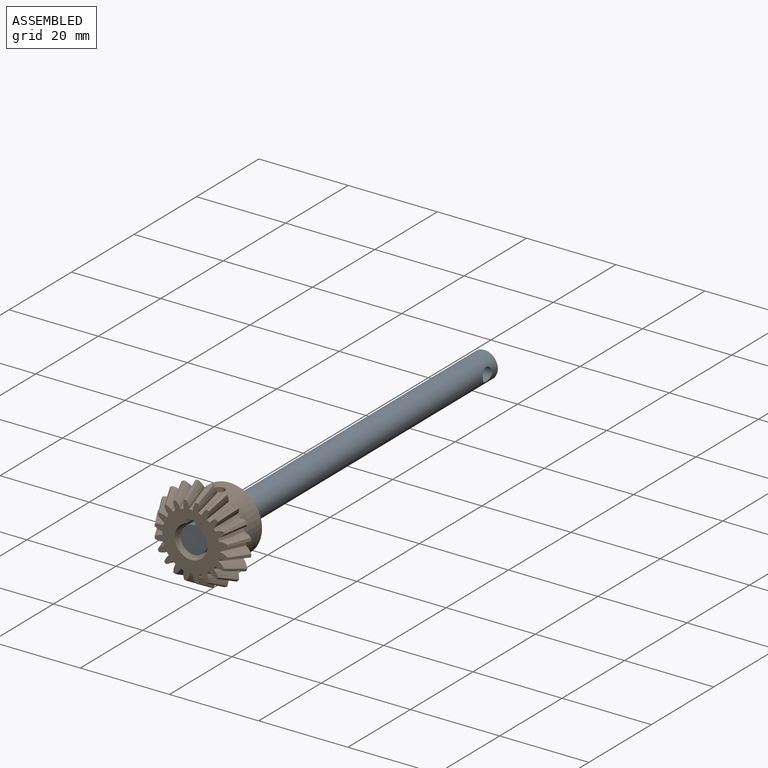
[diagram: assembled view]
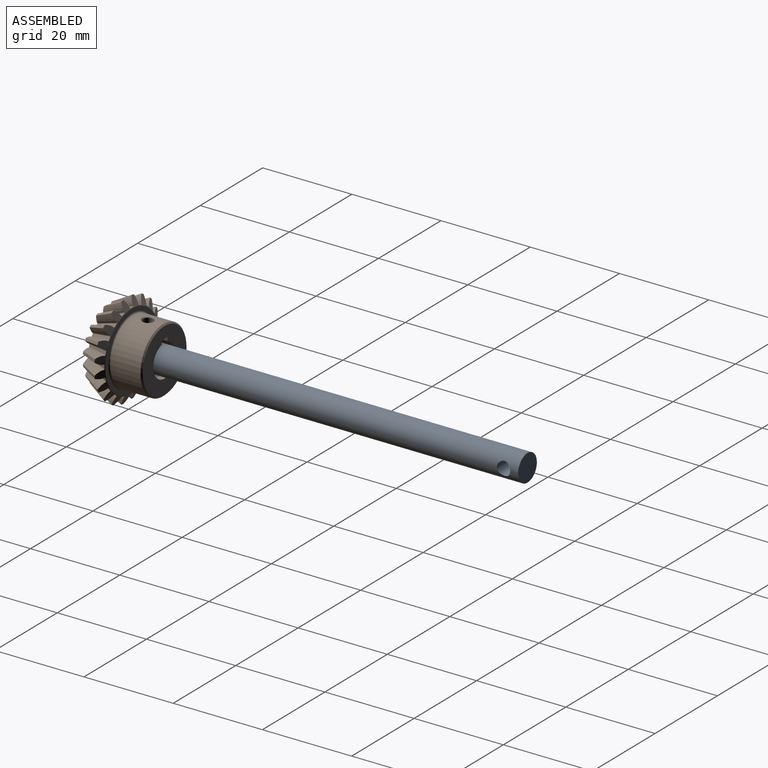
[diagram: assembled view, second angle]
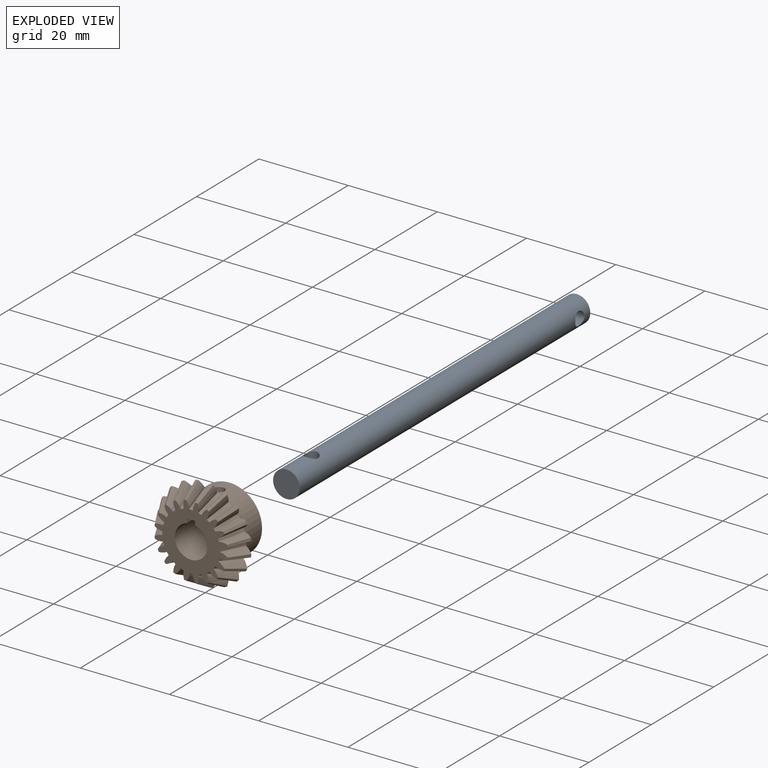
[diagram: exploded view]
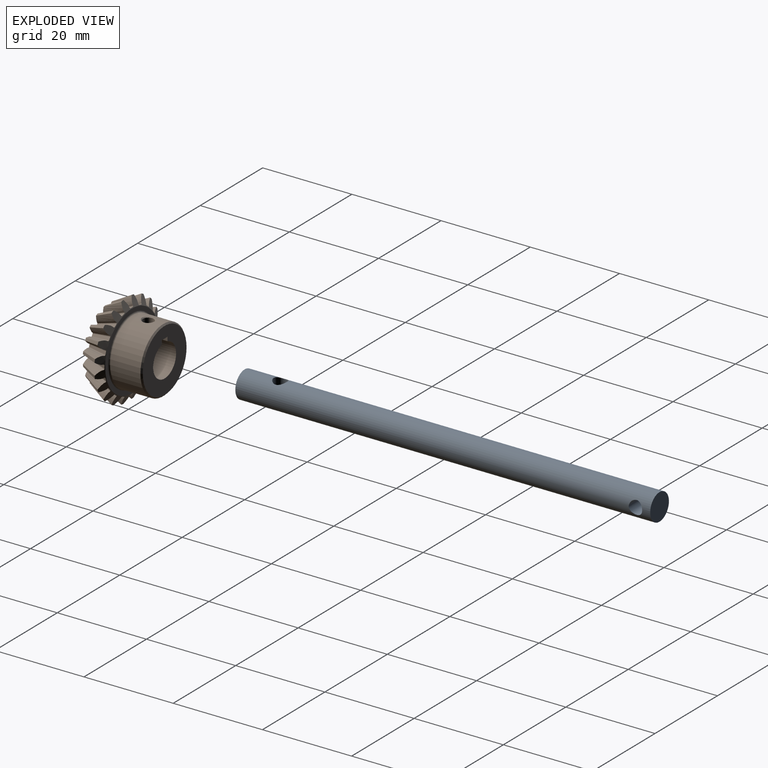
[diagram: exploded view, second angle]
ASSEMBLY  parts=2 mates=2
PART A: 5 faces, bbox 6x6x93 mm
  f0: cylinder r=3mm len=93mm, axis (0,0,-1), area 1723.7mm2, adj f1,f2,f3,f4
  f1: plane 6x6mm, normal (0,0,1), area 28.3mm2, adj f0
  f2: plane 6x6mm, normal (0,0,-1), area 28.3mm2, adj f0
  f3: cylinder r=1.5mm len=6mm, axis (0,1,0), area 52.8mm2, adj f0
  f4: cylinder r=1.5mm len=6mm, axis (-1,0,0), area 52.8mm2, adj f0
PART B: 176 faces, bbox 21.3x13.7x21.3 mm
  f0: cone r=10.63mm half-angle=29.1deg, axis (0,1,0), area 3.1mm2, adj f19,f23,f26,f169
  f1: cone r=10.63mm half-angle=29.1deg, axis (0,1,0), area 3.1mm2, adj f19,f23,f162,f170
  f2: cone r=10.63mm half-angle=29.1deg, axis (0,1,0), area 3.1mm2, adj f19,f23,f155,f163
  f3: cone r=10.63mm half-angle=29.1deg, axis (0,1,0), area 3.1mm2, adj f19,f23,f148,f156
  f4: cone r=10.63mm half-angle=29.1deg, axis (0,1,0), area 3.1mm2, adj f19,f23,f141,f149
  f5: cone r=10.63mm half-angle=29.1deg, axis (0,1,0), area 3.1mm2, adj f19,f23,f134,f142
  f6: cone r=10.63mm half-angle=29.1deg, axis (0,1,0), area 3.1mm2, adj f19,f23,f127,f135
  f7: cone r=10.63mm half-angle=29.1deg, axis (0,1,0), area 3.1mm2, adj f19,f23,f120,f128
  f8: cone r=10.63mm half-angle=29.1deg, axis (0,1,0), area 3.1mm2, adj f19,f23,f113,f121
  f9: cone r=10.63mm half-angle=29.1deg, axis (0,1,0), area 3.1mm2, adj f19,f23,f106,f114
  f10: cone r=10.63mm half-angle=29.1deg, axis (0,1,0), area 3.1mm2, adj f19,f23,f99,f107
  f11: cone r=10.63mm half-angle=29.1deg, axis (0,1,0), area 3.1mm2, adj f19,f23,f92,f100
  f12: cone r=10.63mm half-angle=29.1deg, axis (0,1,0), area 3.1mm2, adj f19,f23,f85,f93
  f13: cone r=10.63mm half-angle=29.1deg, axis (0,1,0), area 3.1mm2, adj f19,f23,f78,f86
  f14: cone r=10.63mm half-angle=29.1deg, axis (0,1,0), area 3.1mm2, adj f19,f23,f71,f79
  f15: cone r=10.63mm half-angle=29.1deg, axis (0,1,0), area 3.1mm2, adj f19,f23,f64,f72
  f16: cone r=10.63mm half-angle=29.1deg, axis (0,1,0), area 3.1mm2, adj f19,f23,f57,f65
  f17: cone r=10.63mm half-angle=29.1deg, axis (0,1,0), area 3.1mm2, adj f19,f23,f50,f58
  f18: cone r=10.63mm half-angle=29.1deg, axis (0,1,0), area 3.1mm2, adj f19,f23,f48,f51
  f19: plane 16.41x16.41mm, normal (0,-1,0), area 126.5mm2, adj f0,f1,f2,f3,f4,f5,f6,f7
  f20: cylinder r=3.66mm len=12.6mm, axis (0,-1,0), area 265.6mm2, adj f19,f32,f35,f37,f38,f40,f41
  f21: cylinder r=7.32mm len=14.63mm, axis (0,-1,0), area 301.7mm2, adj f33,f34,f36
  f22: plane 17.17x17.17mm, normal (0,1,0), area 48.7mm2, adj f23,f34
  f23: cone r=8.58mm half-angle=63.4deg, axis (0,-1,0), area 67mm2, adj f0,f1,f2,f3,f4,f5,f6,f7
  f24: cone r=10.63mm half-angle=29.1deg, axis (0,1,0), area 3.1mm2, adj f19,f23,f25,f49
  f25: bspline ~6.05x4mm, area 8mm2, adj f19,f23,f24,f27
  f26: bspline ~6.05x4mm, area 8mm2, adj f0,f19,f23,f28
  f27: plane 5.1x2.51mm, normal (1,0,0.06), area 1.2mm2, adj f19,f23,f25,f29
  f28: plane 5.1x2.51mm, normal (-1,0,0.06), area 1.2mm2, adj f19,f23,f26,f30
  f29: bspline ~5.29x2.49mm, area 1.8mm2, adj f19,f23,f27,f31
  f30: bspline ~5.29x2.49mm, area 1.8mm2, adj f19,f23,f28,f31
  f31: plane 5.23x2.28mm, normal (0,-0.4,0.92), area 3.2mm2, adj f19,f23,f29,f30
  f32: plane 14.01x14.01mm, normal (0,1,0), area 110.5mm2, adj f20,f33,f37,f38,f39
  f33: cone r=7.32mm half-angle=45deg, axis (0,-1,0), area 19.9mm2, adj f21,f32
  f34: torus R=7.63mm, axis (0,-1,0), area 22.9mm2, adj f21,f22
  f35: cylinder r=1.22mm len=3.58mm, axis (0,0,-1), area 23.6mm2, adj f20,f36,f37,f38,f39,f40,f41,f42
  f36: cone r=1.41mm half-angle=45deg, axis (0,0,1), area 1.5mm2, adj f21,f35
  f37: plane 2.85x0.91mm, normal (1,0,0), area 2.6mm2, adj f20,f32,f35,f39
  f38: plane 2.85x0.91mm, normal (-1,0,0), area 2.6mm2, adj f20,f32,f35,f39
  f39: plane 2.85x1.83mm, normal (0,0,-1), area 4.7mm2, adj f32,f35,f37,f38
  f40: plane 8.14x0.91mm, normal (-1,0,0), area 7.4mm2, adj f19,f20,f35,f42
  f41: plane 8.14x0.91mm, normal (1,0,0), area 7.4mm2, adj f19,f20,f35,f42
  f42: plane 8.14x1.83mm, normal (0,0,-1), area 14.4mm2, adj f19,f35,f40,f41
  f43: plane 5.1x2.33mm, normal (0.93,0,0.37), area 1.2mm2, adj f19,f23,f45,f48
  f44: plane 5.1x2.43mm, normal (-0.97,0,-0.25), area 1.2mm2, adj f19,f23,f46,f49
  f45: bspline ~5.29x2.28mm, area 1.8mm2, adj f19,f23,f43,f47
  f46: bspline ~5.29x2.46mm, area 1.8mm2, adj f19,f23,f44,f47
  f47: plane 5.23x2.35mm, normal (-0.28,-0.4,0.87), area 3.2mm2, adj f19,f23,f45,f46
  f48: bspline ~6.05x3.52mm, area 8mm2, adj f18,f19,f23,f43
  f49: bspline ~5.52x3.8mm, area 8mm2, adj f19,f23,f24,f44
  f50: bspline ~5.52x2.9mm, area 8mm2, adj f17,f19,f23,f52
  f51: bspline ~6.05x3.79mm, area 8mm2, adj f18,f19,f23,f53
  f52: plane 5.1x1.93mm, normal (0.77,0,0.64), area 1.2mm2, adj f19,f23,f50,f54
  f53: plane 5.1x2.12mm, normal (-0.85,0,-0.53), area 1.2mm2, adj f19,f23,f51,f55
  f54: bspline ~5.29x1.86mm, area 1.8mm2, adj f19,f23,f52,f56
  f55: bspline ~5.29x2.2mm, area 1.8mm2, adj f19,f23,f53,f56
  f56: plane 5.23x2.18mm, normal (-0.54,-0.4,0.74), area 3.2mm2, adj f19,f23,f54,f55
  f57: bspline ~6.05x3.79mm, area 8mm2, adj f16,f19,f23,f59
  f58: bspline ~6.05x3.11mm, area 8mm2, adj f17,f19,f23,f60
  f59: plane 5.1x2.12mm, normal (0.53,0,0.85), area 1.2mm2, adj f19,f23,f57,f61
  f60: plane 5.1x1.93mm, normal (-0.64,0,-0.77), area 1.2mm2, adj f19,f23,f58,f62
  f61: bspline ~5.29x2.2mm, area 1.8mm2, adj f19,f23,f59,f63
  f62: bspline ~5.29x1.86mm, area 1.8mm2, adj f19,f23,f60,f63
  f63: plane 5.23x2.18mm, normal (-0.74,-0.4,0.54), area 3.2mm2, adj f19,f23,f61,f62
  f64: bspline ~6.05x4.1mm, area 8mm2, adj f15,f19,f23,f66
  f65: bspline ~5.52x3.26mm, area 8mm2, adj f16,f19,f23,f67
  f66: plane 5.1x2.43mm, normal (0.25,0,0.97), area 1.2mm2, adj f19,f23,f64,f68
  f67: plane 5.1x2.33mm, normal (-0.37,0,-0.93), area 1.2mm2, adj f19,f23,f65,f69
  f68: bspline ~5.29x2.46mm, area 1.8mm2, adj f19,f23,f66,f70
  f69: bspline ~5.29x2.28mm, area 1.8mm2, adj f19,f23,f67,f70
  f70: plane 5.23x2.35mm, normal (-0.87,-0.4,0.28), area 3.2mm2, adj f19,f23,f68,f69
  f71: bspline ~6.05x4mm, area 8mm2, adj f14,f19,f23,f73
  f72: bspline ~6.05x4mm, area 8mm2, adj f15,f19,f23,f74
  f73: plane 5.1x2.51mm, normal (-0.06,0,1), area 1.2mm2, adj f19,f23,f71,f75
  f74: plane 5.1x2.51mm, normal (-0.06,0,-1), area 1.2mm2, adj f19,f23,f72,f76
  f75: bspline ~5.29x2.49mm, area 1.8mm2, adj f19,f23,f73,f77
  f76: bspline ~5.29x2.49mm, area 1.8mm2, adj f19,f23,f74,f77
  f77: plane 5.23x2.28mm, normal (-0.92,-0.4,0), area 3.2mm2, adj f19,f23,f75,f76
  f78: bspline ~6.05x3.52mm, area 8mm2, adj f13,f19,f23,f80
  f79: bspline ~6.05x4.1mm, area 8mm2, adj f14,f19,f23,f81
  f80: plane 5.1x2.33mm, normal (-0.37,0,0.93), area 1.2mm2, adj f19,f23,f78,f82
  f81: plane 5.1x2.43mm, normal (0.25,0,-0.97), area 1.2mm2, adj f19,f23,f79,f83
  f82: bspline ~5.29x2.28mm, area 1.8mm2, adj f19,f23,f80,f84
  f83: bspline ~5.85x2.7mm, area 1.8mm2, adj f19,f23,f81,f84
  f84: plane 5.23x2.35mm, normal (-0.87,-0.4,-0.28), area 3.2mm2, adj f19,f23,f82,f83
  f85: bspline ~6.05x3.11mm, area 8mm2, adj f12,f19,f23,f87
  f86: bspline ~6.05x3.79mm, area 8mm2, adj f13,f19,f23,f88
  f87: plane 5.1x1.93mm, normal (-0.64,0,0.77), area 1.2mm2, adj f19,f23,f85,f89
  f88: plane 5.1x2.12mm, normal (0.53,0,-0.85), area 1.2mm2, adj f19,f23,f86,f90
  f89: bspline ~5.29x1.86mm, area 1.8mm2, adj f19,f23,f87,f91
  f90: bspline ~5.29x2.2mm, area 1.8mm2, adj f19,f23,f88,f91
  f91: plane 5.23x2.18mm, normal (-0.74,-0.4,-0.54), area 3.2mm2, adj f19,f23,f89,f90
  f92: bspline ~5.52x3.52mm, area 8mm2, adj f11,f19,f23,f94
  f93: bspline ~6.05x3.11mm, area 8mm2, adj f12,f19,f23,f95
  f94: plane 5.1x2.12mm, normal (-0.85,0,0.53), area 1.2mm2, adj f19,f23,f92,f96
  f95: plane 5.1x1.93mm, normal (0.77,0,-0.64), area 1.2mm2, adj f19,f23,f93,f97
  f96: bspline ~5.29x2.2mm, area 1.8mm2, adj f19,f23,f94,f98
  f97: bspline ~5.29x1.86mm, area 1.8mm2, adj f19,f23,f95,f98
  f98: plane 5.23x2.18mm, normal (-0.54,-0.4,-0.74), area 3.2mm2, adj f19,f23,f96,f97
  f99: bspline ~6.05x4.1mm, area 8mm2, adj f10,f19,f23,f101
  f100: bspline ~6.05x3.52mm, area 8mm2, adj f11,f19,f23,f102
  f101: plane 5.1x2.43mm, normal (-0.97,0,0.25), area 1.2mm2, adj f19,f23,f99,f103
  f102: plane 5.1x2.33mm, normal (0.93,0,-0.37), area 1.2mm2, adj f19,f23,f100,f104
  f103: bspline ~5.29x2.46mm, area 1.8mm2, adj f19,f23,f101,f105
  f104: bspline ~5.29x2.28mm, area 1.8mm2, adj f19,f23,f102,f105
  f105: plane 5.23x2.35mm, normal (-0.28,-0.4,-0.87), area 3.2mm2, adj f19,f23,f103,f104
  f106: bspline ~6.05x4mm, area 8mm2, adj f9,f19,f23,f108
  f107: bspline ~6.05x4mm, area 8mm2, adj f10,f19,f23,f109
  f108: plane 5.1x2.51mm, normal (-1,0,-0.06), area 1.2mm2, adj f19,f23,f106,f110
  f109: plane 5.1x2.51mm, normal (1,0,-0.06), area 1.2mm2, adj f19,f23,f107,f111
  f110: bspline ~5.29x2.49mm, area 1.8mm2, adj f19,f23,f108,f112
  f111: bspline ~5.29x2.49mm, area 1.8mm2, adj f19,f23,f109,f112
  f112: plane 5.23x2.28mm, normal (0,-0.4,-0.92), area 3.2mm2, adj f19,f23,f110,f111
  f113: bspline ~6.05x3.52mm, area 8mm2, adj f8,f19,f23,f115
  f114: bspline ~6.05x4.1mm, area 8mm2, adj f9,f19,f23,f116
  f115: plane 5.1x2.33mm, normal (-0.93,0,-0.37), area 1.2mm2, adj f19,f23,f113,f117
  f116: plane 5.1x2.43mm, normal (0.97,0,0.25), area 1.2mm2, adj f19,f23,f114,f118
  f117: bspline ~5.29x2.28mm, area 1.8mm2, adj f19,f23,f115,f119
  f118: bspline ~5.29x2.46mm, area 1.8mm2, adj f19,f23,f116,f119
  f119: plane 5.23x2.35mm, normal (0.28,-0.4,-0.87), area 3.2mm2, adj f19,f23,f117,f118
  f120: bspline ~6.05x3.11mm, area 8mm2, adj f7,f19,f23,f122
  f121: bspline ~6.05x3.79mm, area 8mm2, adj f8,f19,f23,f123
  f122: plane 5.1x1.93mm, normal (-0.77,0,-0.64), area 1.2mm2, adj f19,f23,f120,f124
  f123: plane 5.1x2.12mm, normal (0.85,0,0.53), area 1.2mm2, adj f19,f23,f121,f125
  f124: bspline ~5.29x1.86mm, area 1.8mm2, adj f19,f23,f122,f126
  f125: bspline ~5.29x2.2mm, area 1.8mm2, adj f19,f23,f123,f126
  f126: plane 5.23x2.18mm, normal (0.54,-0.4,-0.74), area 3.2mm2, adj f19,f23,f124,f125
  f127: bspline ~6.05x3.79mm, area 8mm2, adj f6,f19,f23,f129
  f128: bspline ~5.52x2.9mm, area 8mm2, adj f7,f19,f23,f130
  f129: plane 5.1x2.12mm, normal (-0.53,0,-0.85), area 1.2mm2, adj f19,f23,f127,f131
  f130: plane 5.1x1.93mm, normal (0.64,0,0.77), area 1.2mm2, adj f19,f23,f128,f132
  f131: bspline ~5.29x2.2mm, area 1.8mm2, adj f19,f23,f129,f133
  f132: bspline ~5.29x1.86mm, area 1.8mm2, adj f19,f23,f130,f133
  f133: plane 5.23x2.18mm, normal (0.74,-0.4,-0.54), area 3.2mm2, adj f19,f23,f131,f132
  f134: bspline ~5.52x3.8mm, area 8mm2, adj f5,f19,f23,f136
  f135: bspline ~6.05x3.52mm, area 8mm2, adj f6,f19,f23,f137
  f136: plane 5.1x2.43mm, normal (-0.25,0,-0.97), area 1.2mm2, adj f19,f23,f134,f138
  f137: plane 5.1x2.33mm, normal (0.37,0,0.93), area 1.2mm2, adj f19,f23,f135,f139
  f138: bspline ~5.85x2.7mm, area 1.8mm2, adj f19,f23,f136,f140
  f139: bspline ~5.85x2.53mm, area 1.8mm2, adj f19,f23,f137,f140
  f140: plane 5.23x2.35mm, normal (0.87,-0.4,-0.28), area 3.2mm2, adj f19,f23,f138,f139
  f141: bspline ~5.52x3.71mm, area 8mm2, adj f4,f19,f23,f143
  f142: bspline ~5.52x3.71mm, area 8mm2, adj f5,f19,f23,f144
  f143: plane 5.1x2.51mm, normal (0.06,0,-1), area 1.2mm2, adj f19,f23,f141,f145
  f144: plane 5.1x2.51mm, normal (0.06,0,1), area 1.2mm2, adj f19,f23,f142,f146
  f145: bspline ~5.29x2.49mm, area 1.8mm2, adj f19,f23,f143,f147
  f146: bspline ~5.29x2.49mm, area 1.8mm2, adj f19,f23,f144,f147
  f147: plane 5.22x2.28mm, normal (0.92,-0.4,0), area 3.2mm2, adj f19,f23,f145,f146
  f148: bspline ~5.52x3.26mm, area 8mm2, adj f3,f19,f23,f150
  f149: bspline ~5.52x3.8mm, area 8mm2, adj f4,f19,f23,f151
  f150: plane 5.1x2.33mm, normal (0.37,0,-0.93), area 1.2mm2, adj f19,f23,f148,f152
  f151: plane 5.1x2.43mm, normal (-0.25,0,0.97), area 1.2mm2, adj f19,f23,f149,f153
  f152: bspline ~5.85x2.53mm, area 1.8mm2, adj f19,f23,f150,f154
  f153: bspline ~5.29x2.46mm, area 1.8mm2, adj f19,f23,f151,f154
  f154: plane 5.23x2.35mm, normal (0.87,-0.4,0.28), area 3.2mm2, adj f19,f23,f152,f153
  f155: bspline ~5.52x2.9mm, area 8mm2, adj f2,f19,f23,f157
  f156: bspline ~6.05x3.79mm, area 8mm2, adj f3,f19,f23,f158
  f157: plane 5.1x1.93mm, normal (0.64,0,-0.77), area 1.2mm2, adj f19,f23,f155,f159
  f158: plane 5.1x2.12mm, normal (-0.53,0,0.85), area 1.2mm2, adj f19,f23,f156,f160
  f159: bspline ~5.29x1.86mm, area 1.8mm2, adj f19,f23,f157,f161
  f160: bspline ~5.29x2.2mm, area 1.8mm2, adj f19,f23,f158,f161
  f161: plane 5.23x2.18mm, normal (0.74,-0.4,0.54), area 3.2mm2, adj f19,f23,f159,f160
  f162: bspline ~6.05x3.79mm, area 8mm2, adj f1,f19,f23,f164
  f163: bspline ~5.52x2.9mm, area 8mm2, adj f2,f19,f23,f165
  f164: plane 5.1x2.12mm, normal (0.85,0,-0.53), area 1.2mm2, adj f19,f23,f162,f166
  f165: plane 5.1x1.93mm, normal (-0.77,0,0.64), area 1.2mm2, adj f19,f23,f163,f167
  f166: bspline ~5.29x2.2mm, area 1.8mm2, adj f19,f23,f164,f168
  f167: bspline ~5.29x1.86mm, area 1.8mm2, adj f19,f23,f165,f168
  f168: plane 5.23x2.18mm, normal (0.54,-0.4,0.74), area 3.2mm2, adj f19,f23,f166,f167
  f169: bspline ~5.52x3.8mm, area 8mm2, adj f0,f19,f23,f171
  f170: bspline ~6.05x3.52mm, area 8mm2, adj f1,f19,f23,f172
  f171: plane 5.1x2.43mm, normal (0.97,0,-0.25), area 1.2mm2, adj f19,f23,f169,f173
  f172: plane 5.1x2.33mm, normal (-0.93,0,0.37), area 1.2mm2, adj f19,f23,f170,f174
  f173: bspline ~5.29x2.46mm, area 1.8mm2, adj f19,f23,f171,f175
  f174: bspline ~5.29x2.28mm, area 1.8mm2, adj f19,f23,f172,f175
  f175: plane 5.23x2.35mm, normal (0.28,-0.4,0.87), area 3.2mm2, adj f19,f23,f173,f174
PLACE A rot(axis=(-1,0,0),90deg) t=(0,-3.59,-0.13)mm
PLACE B at identity
MATE parallel A.f3 <-> B.f35  axis (0,0,-1) through (0,4.41,2.91)mm
MATE fastened A.f0 <-> B.f0  axis (0,-1,0) through (0,42.91,-0.13)mm
